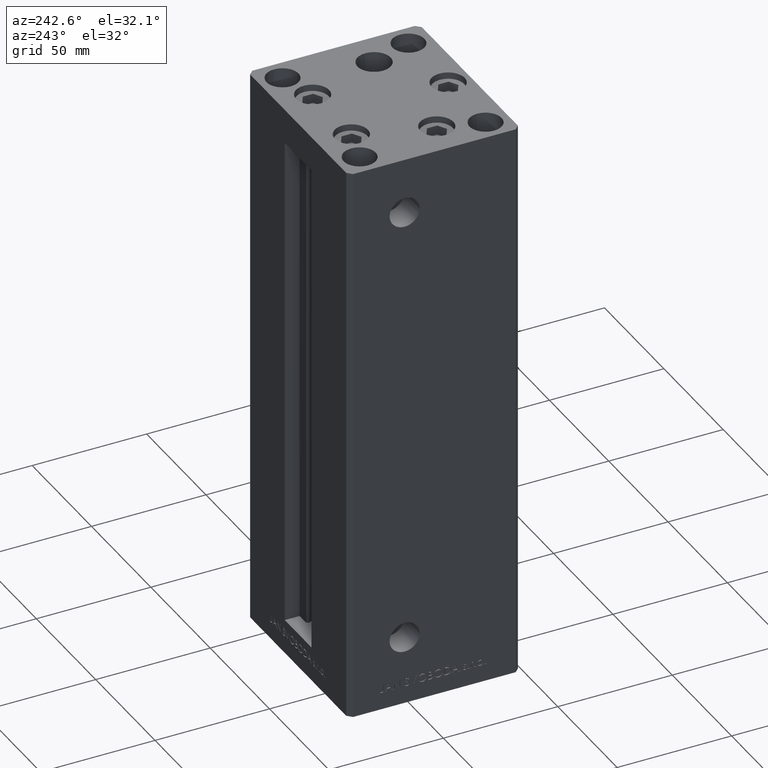
[diagram: clean part render]
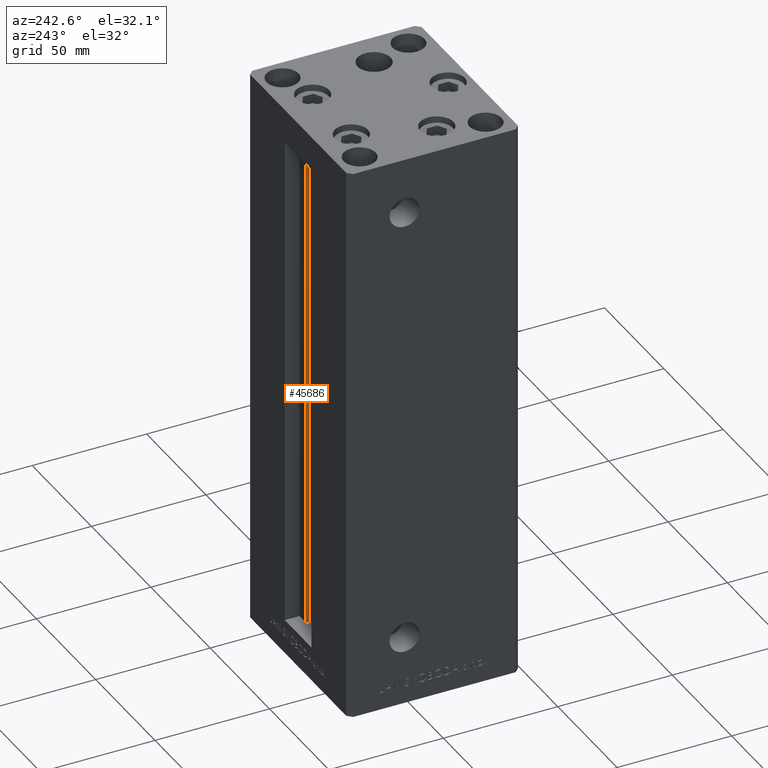
[diagram: same view with one face highlighted and labeled with its STEP entity id]
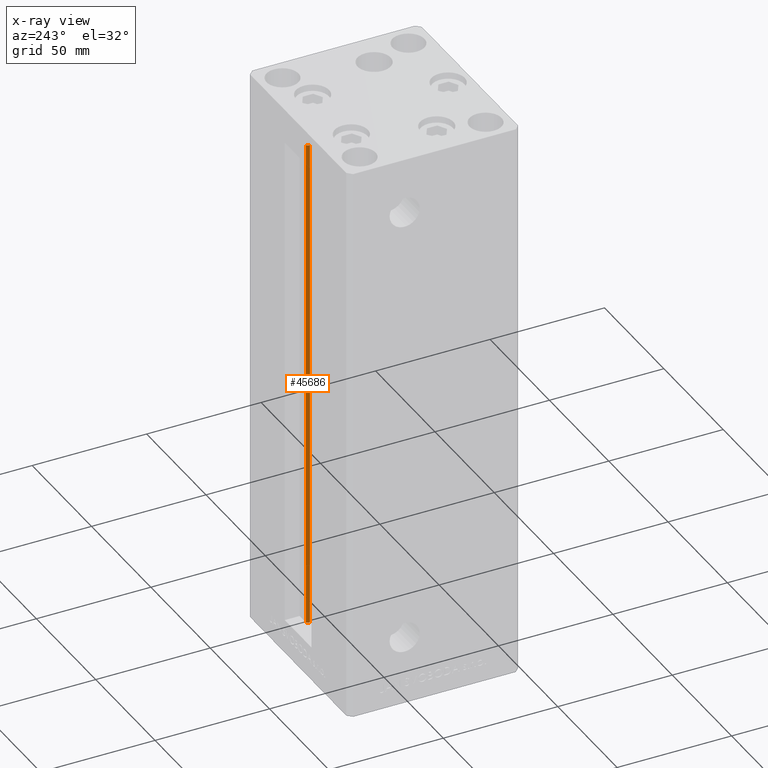
[diagram: x-ray of the same camera — body ghosted, the highlighted face saturated]
A machine part, auxiliary view. The second image highlights one B-rep face of the part: STEP entity #45686.
The next image is the same camera in x-ray: the body ghosted, the highlighted face saturated — about 0% of this face is hidden behind the body in this view.
In plain terms, the highlighted cylindrical surface (edge-blend (fillet) strip) has radius 0.9333 mm, axis along (0, 0, 1).
Its self-contained STEP definition (entity closure, byte-faithful):
#1250 = CARTESIAN_POINT ( 'NONE',  ( 5.375042956467943611, 29.59999999999899245, 0.000000000000000000 ) ) ;
#3239 = DIRECTION ( 'NONE',  ( 1.000000000000000000, 0.000000000000000000, 0.000000000000000000 ) ) ;
#3916 = DIRECTION ( 'NONE',  ( 1.000000000000000000, 0.000000000000000000, 0.000000000000000000 ) ) ;
#4277 = DIRECTION ( 'NONE',  ( -0.000000000000000000, -0.000000000000000000, 1.000000000000000000 ) ) ;
#4712 = CIRCLE ( 'NONE', #17564, 0.9333333333340015914 ) ;
#6710 = CARTESIAN_POINT ( 'NONE',  ( 5.375042956467943611, 29.59999999999899245, 0.000000000000000000 ) ) ;
#7933 = VERTEX_POINT ( 'NONE', #15309 ) ;
#7938 = EDGE_CURVE ( 'NONE', #36166, #43598, #37196, .T. ) ;
#8692 = FACE_OUTER_BOUND ( 'NONE', #48954, .T. ) ;
#10577 = EDGE_CURVE ( 'NONE', #36166, #30861, #35202, .T. ) ;
#14963 = DIRECTION ( 'NONE',  ( 0.000000000000000000, 0.000000000000000000, -1.000000000000000000 ) ) ;
#15309 = CARTESIAN_POINT ( 'NONE',  ( 6.183333333333999704, 30.99999999999999289, 218.5000000000000000 ) ) ;
#17564 = AXIS2_PLACEMENT_3D ( 'NONE', #37593, #14963, #30538 ) ;
#23284 = DIRECTION ( 'NONE',  ( -0.000000000000000000, -0.000000000000000000, 1.000000000000000000 ) ) ;
#24047 = ORIENTED_EDGE ( 'NONE', *, *, #10577, .T. ) ;
#27161 = AXIS2_PLACEMENT_3D ( 'NONE', #38374, #23284, #3916 ) ;
#27782 = CYLINDRICAL_SURFACE ( 'NONE', #27161, 0.9333333333340015914 ) ;
#30538 = DIRECTION ( 'NONE',  ( 1.000000000000000000, 0.000000000000000000, 0.000000000000000000 ) ) ;
#30768 = EDGE_CURVE ( 'NONE', #30861, #7933, #4712, .T. ) ;
#30861 = VERTEX_POINT ( 'NONE', #46128 ) ;
#33879 = CARTESIAN_POINT ( 'NONE',  ( 6.183333333333999704, 30.99999999999999289, 0.000000000000000000 ) ) ;
#33905 = VECTOR ( 'NONE', #40107, 1000.000000000000000 ) ;
#34069 = VECTOR ( 'NONE', #4277, 1000.000000000000000 ) ;
#34414 = DIRECTION ( 'NONE',  ( -0.000000000000000000, -0.000000000000000000, -1.000000000000000000 ) ) ;
#35202 = LINE ( 'NONE', #1250, #34069 ) ;
#36166 = VERTEX_POINT ( 'NONE', #6710 ) ;
#37196 = CIRCLE ( 'NONE', #47627, 0.9333333333340015914 ) ;
#37593 = CARTESIAN_POINT ( 'NONE',  ( 6.183333333333999704, 30.06666666666599141, 218.5000000000000000 ) ) ;
#37697 = CARTESIAN_POINT ( 'NONE',  ( 6.183333333333999704, 30.06666666666599141, 0.000000000000000000 ) ) ;
#38374 = CARTESIAN_POINT ( 'NONE',  ( 6.183333333333999704, 30.06666666666599141, 0.000000000000000000 ) ) ;
#40107 = DIRECTION ( 'NONE',  ( -0.000000000000000000, -0.000000000000000000, 1.000000000000000000 ) ) ;
#40595 = CARTESIAN_POINT ( 'NONE',  ( 6.183333333333999704, 30.99999999999999289, 0.000000000000000000 ) ) ;
#42073 = ORIENTED_EDGE ( 'NONE', *, *, #42502, .F. ) ;
#42294 = ORIENTED_EDGE ( 'NONE', *, *, #7938, .F. ) ;
#42502 = EDGE_CURVE ( 'NONE', #43598, #7933, #44115, .T. ) ;
#43598 = VERTEX_POINT ( 'NONE', #33879 ) ;
#44115 = LINE ( 'NONE', #40595, #33905 ) ;
#45374 = ORIENTED_EDGE ( 'NONE', *, *, #30768, .T. ) ;
#45686 = ADVANCED_FACE ( 'NONE', ( #8692 ), #27782, .T. ) ;
#46128 = CARTESIAN_POINT ( 'NONE',  ( 5.375042956467944499, 29.59999999999899245, 218.5000000000000000 ) ) ;
#47627 = AXIS2_PLACEMENT_3D ( 'NONE', #37697, #34414, #3239 ) ;
#48954 = EDGE_LOOP ( 'NONE', ( #42073, #42294, #24047, #45374 ) ) ;